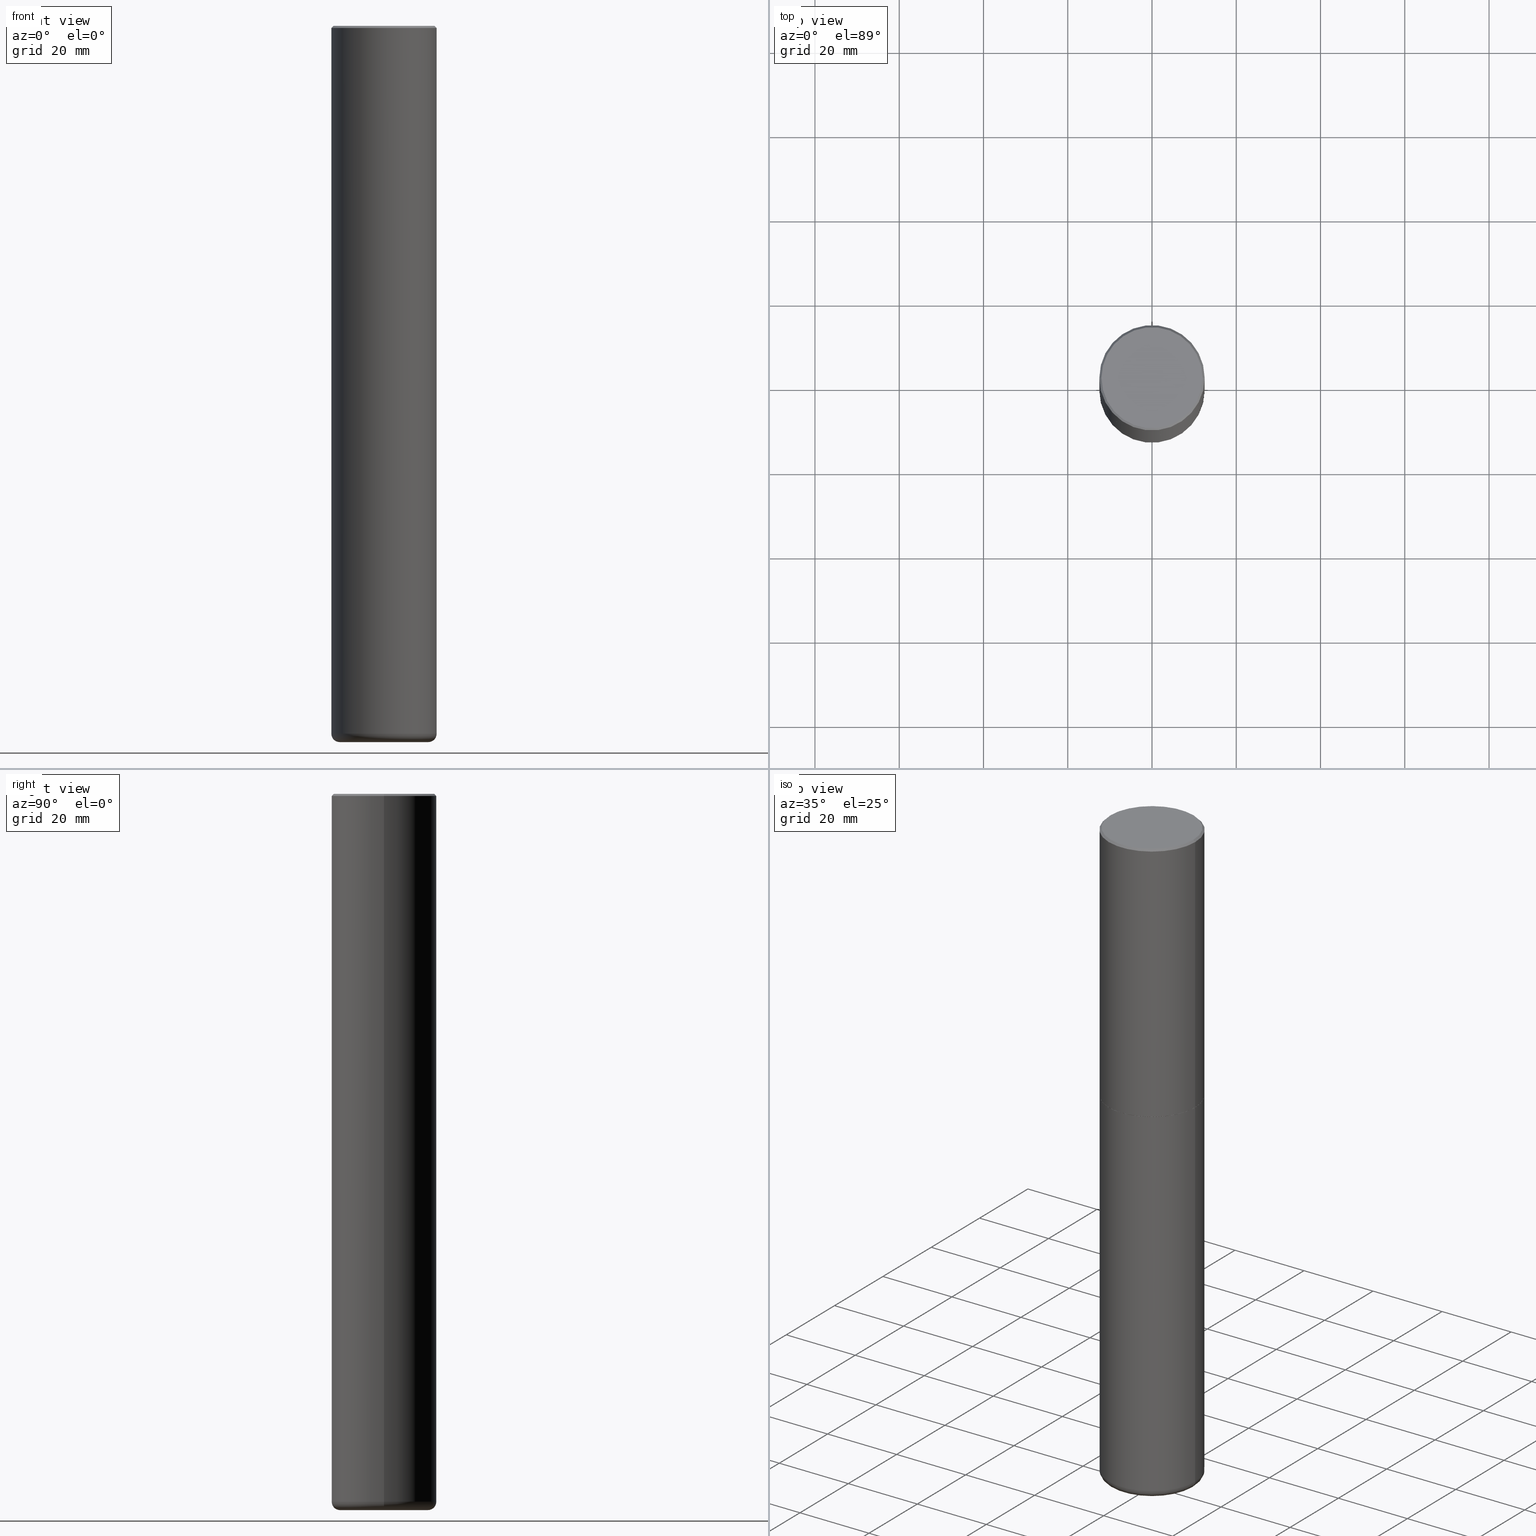
[diagram: canonical four-view strip — front | top / right | iso, engineering-drawing reading convention]
A machine part, canonical four-view strip (front | top / right | iso — engineering-drawing reading convention). The complete STEP part file that produces these views, byte-faithful:
ISO-10303-21;
HEADER;
FILE_DESCRIPTION (( 'STEP AP203' ),
    '1' );
FILE_NAME ('74905.STEP',
    '2024-05-02T19:29:17',
    ( '' ),
    ( '' ),
    'SwSTEP 2.0',
    'SolidWorks 2023',
    '' );
FILE_SCHEMA (( 'CONFIG_CONTROL_DESIGN' ));
ENDSEC;

DATA;
#1 = FACE_OUTER_BOUND ( 'NONE', #138, .T. ) ;
#2 = CARTESIAN_POINT ( 'NONE',  ( 6.739467482965618232E-29, -9.622173421717824390E-15, -2.755900000000000016 ) ) ;
#3 = VECTOR ( 'NONE', #306, 39.37007874015748143 ) ;
#4 = AXIS2_PLACEMENT_3D ( 'NONE', #328, #7, #132 ) ;
#5 = FACE_OUTER_BOUND ( 'NONE', #21, .T. ) ;
#6 =( LENGTH_UNIT ( ) NAMED_UNIT ( * ) SI_UNIT ( $, .METRE. ) );
#7 = DIRECTION ( 'NONE',  ( 7.105427357601001859E-15, 1.000000000000000000, -3.491481338843145583E-15 ) ) ;
#8 = EDGE_CURVE ( 'NONE', #121, #273, #321, .T. ) ;
#9 = AXIS2_PLACEMENT_3D ( 'NONE', #367, #116, #120 ) ;
#10 = PERSON_AND_ORGANIZATION_ROLE ( 'creator' ) ;
#11 = CIRCLE ( 'NONE', #172, 0.4921500000000000319 ) ;
#12 = CARTESIAN_POINT ( 'NONE',  ( 1.636727817291649742E-28, -2.336813545274328465E-14, -6.692899999999998961 ) ) ;
#13 = EDGE_LOOP ( 'NONE', ( #281, #129, #350, #92 ) ) ;
#14 = APPROVAL_DATE_TIME ( #207, #249 ) ;
#15 = DIRECTION ( 'NONE',  ( -6.982962677686266711E-15, -1.000000000000000000, 3.491481338843145583E-15 ) ) ;
#16 = ADVANCED_FACE ( 'NONE', ( #105 ), #227, .T. ) ;
#17 = PERSON_AND_ORGANIZATION ( #198, #418 ) ;
#18 = LINE ( 'NONE', #398, #100 ) ;
#19 = CARTESIAN_POINT ( 'NONE',  ( 0.4134499999999999287, -2.625524137183267217E-14, -6.692899999999998961 ) ) ;
#20 = AXIS2_PLACEMENT_3D ( 'NONE', #213, #309, #76 ) ;
#21 = EDGE_LOOP ( 'NONE', ( #123, #277, #270, #112 ) ) ;
#22 = DIRECTION ( 'NONE',  ( 1.000000000000000000, -6.982962677686265922E-15, 0.000000000000000000 ) ) ;
#23 = EDGE_LOOP ( 'NONE', ( #409, #407, #75, #113 ) ) ;
#24 = LINE ( 'NONE', #152, #102 ) ;
#25 = ORIENTED_EDGE ( 'NONE', *, *, #199, .T. ) ;
#26 = DIRECTION ( 'NONE',  ( 1.000000000000000000, -6.982962677686265922E-15, 4.876176775795935793E-29 ) ) ;
#27 = AXIS2_PLACEMENT_3D ( 'NONE', #294, #355, #323 ) ;
#28 = VERTEX_POINT ( 'NONE', #375 ) ;
#29 = EDGE_CURVE ( 'NONE', #78, #196, #93, .T. ) ;
#30 = CC_DESIGN_PERSON_AND_ORGANIZATION_ASSIGNMENT ( #305, #204, ( #181 ) ) ;
#31 = LOCAL_TIME ( 15, 29, 17.00000000000000000, #170 ) ;
#32 = DIRECTION ( 'NONE',  ( 2.445468806185136597E-29, -3.491481338843145583E-15, -1.000000000000000000 ) ) ;
#33 = CARTESIAN_POINT ( 'NONE',  ( 0.4921499999999999764, -3.436665081823295777E-15, 2.399810400207969603E-29 ) ) ;
#34 = FACE_OUTER_BOUND ( 'NONE', #23, .T. ) ;
#35 = EDGE_CURVE ( 'NONE', #153, #28, #278, .T. ) ;
#36 = DIMENSIONAL_EXPONENTS ( 1.000000000000000000, 0.000000000000000000, 0.000000000000000000, 0.000000000000000000, 0.000000000000000000, 0.000000000000000000, 0.000000000000000000 ) ;
#37 = VECTOR ( 'NONE', #162, 39.37007874015748143 ) ;
#38 = DIRECTION ( 'NONE',  ( -2.445468806185136597E-29, 3.491481338843145583E-15, 1.000000000000000000 ) ) ;
#39 = CC_DESIGN_SECURITY_CLASSIFICATION ( #224, ( #394 ) ) ;
#40 = CARTESIAN_POINT ( 'NONE',  ( 0.000000000000000000, 0.000000000000000000, 0.000000000000000000 ) ) ;
#41 = APPROVAL_STATUS ( 'not_yet_approved' ) ;
#42 = FACE_OUTER_BOUND ( 'NONE', #59, .T. ) ;
#43 = AXIS2_PLACEMENT_3D ( 'NONE', #12, #208, #53 ) ;
#44 = EDGE_LOOP ( 'NONE', ( #192, #399, #241, #206 ) ) ;
#45 = CIRCLE ( 'NONE', #4, 0.07869999999999977014 ) ;
#46 = CARTESIAN_POINT ( 'NONE',  ( -0.4911499999999999755, -6.132342775032092501E-15, -2.755900000000000016 ) ) ;
#47 =( NAMED_UNIT ( * ) SI_UNIT ( $, .STERADIAN. ) SOLID_ANGLE_UNIT ( ) );
#48 = CARTESIAN_POINT ( 'NONE',  ( -0.4921500000000003094, -1.347319709534586880E-15, -2.754900000000000126 ) ) ;
#49 = CALENDAR_DATE ( 2024, 2, 5 ) ;
#50 = CARTESIAN_POINT ( 'NONE',  ( 6.739467482965618232E-29, -9.622173421717824390E-15, -2.755900000000000016 ) ) ;
#51 = VERTEX_POINT ( 'NONE', #272 ) ;
#52 = DATE_TIME_ROLE ( 'creation_date' ) ;
#53 = DIRECTION ( 'NONE',  ( 1.000000000000000000, -6.982962677686271444E-15, 0.000000000000000000 ) ) ;
#54 = AXIS2_PLACEMENT_3D ( 'NONE', #365, #310, #303 ) ;
#55 = EDGE_CURVE ( 'NONE', #28, #153, #268, .T. ) ;
#56 = CARTESIAN_POINT ( 'NONE',  ( 6.739467482965618232E-29, -9.622173421717824390E-15, -2.755900000000000016 ) ) ;
#57 = EDGE_LOOP ( 'NONE', ( #25, #359, #311, #282 ) ) ;
#58 = PLANE ( 'NONE',  #197 ) ;
#59 = EDGE_LOOP ( 'NONE', ( #156, #95 ) ) ;
#60 = CARTESIAN_POINT ( 'NONE',  ( 0.4911499999999999755, -1.305185554086343257E-14, -2.755900000000000016 ) ) ;
#61 = EDGE_CURVE ( 'NONE', #248, #244, #66, .T. ) ;
#62 = VECTOR ( 'NONE', #150, 39.37007874015748143 ) ;
#63 = DIRECTION ( 'NONE',  ( 2.438088387897960049E-29, -3.491481338843145188E-15, -1.000000000000000000 ) ) ;
#64 = APPROVAL ( #260, 'UNSPECIFIED' ) ;
#65 = CARTESIAN_POINT ( 'NONE',  ( 6.739467482965618232E-29, -9.622173421717824390E-15, -2.755900000000000016 ) ) ;
#66 = CIRCLE ( 'NONE', #124, 0.4921500000000000319 ) ;
#67 = AXIS2_PLACEMENT_3D ( 'NONE', #169, #103, #229 ) ;
#68 = ADVANCED_FACE ( 'NONE', ( #42 ), #274, .T. ) ;
#69 = CARTESIAN_POINT ( 'NONE',  ( 0.4921500000000003094, -1.305534702220228032E-14, -2.754900000000000126 ) ) ;
#70 = CARTESIAN_POINT ( 'NONE',  ( 0.000000000000000000, 0.000000000000000000, 0.000000000000000000 ) ) ;
#71 = DIRECTION ( 'NONE',  ( -2.445468806185136597E-29, 3.491481338843145583E-15, 1.000000000000000000 ) ) ;
#72 = CC_DESIGN_DATE_AND_TIME_ASSIGNMENT ( #233, #52, ( #279 ) ) ;
#73 = FACE_OUTER_BOUND ( 'NONE', #13, .T. ) ;
#74 = LOCAL_TIME ( 15, 29, 17.00000000000000000, #405 ) ;
#75 = ORIENTED_EDGE ( 'NONE', *, *, #313, .T. ) ;
#76 = DIRECTION ( 'NONE',  ( 1.000000000000000000, 0.000000000000000000, 0.000000000000000000 ) ) ;
#77 = DIRECTION ( 'NONE',  ( 1.000000000000000000, -6.982962677686265922E-15, 0.000000000000000000 ) ) ;
#78 = VERTEX_POINT ( 'NONE', #372 ) ;
#79 = DATE_TIME_ROLE ( 'classification_date' ) ;
#80 = FACE_OUTER_BOUND ( 'NONE', #381, .T. ) ;
#81 = PERSON_AND_ORGANIZATION ( #198, #418 ) ;
#82 = CONICAL_SURFACE ( 'NONE', #67, 0.4921500000000000319, 0.7853981633974452814 ) ;
#83 = EDGE_CURVE ( 'NONE', #301, #246, #154, .T. ) ;
#84 = DIRECTION ( 'NONE',  ( -2.445468806185136597E-29, 3.491481338843145583E-15, 1.000000000000000000 ) ) ;
#85 =( CONVERSION_BASED_UNIT ( 'INCH', #290 ) LENGTH_UNIT ( ) NAMED_UNIT ( #36 ) );
#86 = CARTESIAN_POINT ( 'NONE',  ( 4.890937612370299433E-31, -6.982962677686328587E-17, -0.02000000000000010797 ) ) ;
#87 = EDGE_LOOP ( 'NONE', ( #416, #297, #315, #284 ) ) ;
#88 = PERSON_AND_ORGANIZATION ( #198, #418 ) ;
#89 = PLANE ( 'NONE',  #285 ) ;
#90 = ADVANCED_FACE ( 'NONE', ( #396 ), #265, .T. ) ;
#91 = CC_DESIGN_PERSON_AND_ORGANIZATION_ASSIGNMENT ( #239, #215, ( #394 ) ) ;
#92 = ORIENTED_EDGE ( 'NONE', *, *, #61, .F. ) ;
#93 = CIRCLE ( 'NONE', #43, 0.4134499999999999287 ) ;
#94 = EDGE_CURVE ( 'NONE', #153, #244, #114, .T. ) ;
#95 = ORIENTED_EDGE ( 'NONE', *, *, #29, .F. ) ;
#96 = ORIENTED_EDGE ( 'NONE', *, *, #235, .T. ) ;
#97 = EDGE_CURVE ( 'NONE', #376, #244, #243, .T. ) ;
#98 = DIRECTION ( 'NONE',  ( 1.000000000000000000, -6.982962677686265922E-15, 0.000000000000000000 ) ) ;
#99 = ORIENTED_EDGE ( 'NONE', *, *, #373, .F. ) ;
#100 = VECTOR ( 'NONE', #122, 39.37007874015748143 ) ;
#101 = VECTOR ( 'NONE', #408, 39.37007874015748143 ) ;
#102 = VECTOR ( 'NONE', #158, 39.37007874015748143 ) ;
#103 = DIRECTION ( 'NONE',  ( 2.445468806185136597E-29, -3.491481338843145583E-15, -1.000000000000000000 ) ) ;
#104 = FACE_OUTER_BOUND ( 'NONE', #57, .T. ) ;
#105 = FACE_OUTER_BOUND ( 'NONE', #87, .T. ) ;
#106 = CONICAL_SURFACE ( 'NONE', #318, 0.4911499999999999755, 0.7853981633977213939 ) ;
#107 = DIRECTION ( 'NONE',  ( -2.445468806185136597E-29, 3.491481338843145583E-15, 1.000000000000000000 ) ) ;
#108 = CARTESIAN_POINT ( 'NONE',  ( -0.4921500000000001984, 3.496936074043334475E-15, -2.420853904668952630E-29 ) ) ;
#109 = EDGE_CURVE ( 'NONE', #246, #376, #18, .T. ) ;
#110 = DIRECTION ( 'NONE',  ( 1.000000000000000000, -6.982962677686265922E-15, 4.876176775795935793E-29 ) ) ;
#111 = TOROIDAL_SURFACE ( 'NONE', #27, 0.4134499999999999287, 0.07869999999999972851 ) ;
#112 = ORIENTED_EDGE ( 'NONE', *, *, #194, .F. ) ;
#113 = ORIENTED_EDGE ( 'NONE', *, *, #235, .F. ) ;
#114 = LINE ( 'NONE', #146, #3 ) ;
#115 = SHAPE_DEFINITION_REPRESENTATION ( #366, #324 ) ;
#116 = DIRECTION ( 'NONE',  ( -2.445468806185136597E-29, 3.491481338843145583E-15, 1.000000000000000000 ) ) ;
#117 = COORDINATED_UNIVERSAL_TIME_OFFSET ( 5, 0, .BEHIND. ) ;
#118 = DIRECTION ( 'NONE',  ( 2.438088387897960049E-29, -3.491481338843145188E-15, -1.000000000000000000 ) ) ;
#119 = PERSON_AND_ORGANIZATION_ROLE ( 'creator' ) ;
#120 = DIRECTION ( 'NONE',  ( 1.000000000000000000, -6.982962677686265922E-15, 4.882029041999364017E-29 ) ) ;
#121 = VERTEX_POINT ( 'NONE', #234 ) ;
#122 = DIRECTION ( 'NONE',  ( 0.7071067811867406405, -2.468850131084279700E-15, 0.7071067811863543939 ) ) ;
#123 = ORIENTED_EDGE ( 'NONE', *, *, #286, .F. ) ;
#124 = AXIS2_PLACEMENT_3D ( 'NONE', #86, #236, #22 ) ;
#125 = AXIS2_PLACEMENT_3D ( 'NONE', #214, #15, #177 ) ;
#126 = EDGE_CURVE ( 'NONE', #121, #51, #369, .T. ) ;
#127 = ORIENTED_EDGE ( 'NONE', *, *, #8, .F. ) ;
#128 = CARTESIAN_POINT ( 'NONE',  ( -0.4921500000000000319, 3.366835455046432873E-15, -0.02000000000000010797 ) ) ;
#129 = ORIENTED_EDGE ( 'NONE', *, *, #383, .T. ) ;
#130 = DIRECTION ( 'NONE',  ( -2.445468806185136597E-29, 3.491481338843145583E-15, 1.000000000000000000 ) ) ;
#131 = AXIS2_PLACEMENT_3D ( 'NONE', #2, #38, #201 ) ;
#132 = DIRECTION ( 'NONE',  ( -1.000000000000000000, 7.105427357601012903E-15, 0.000000000000000000 ) ) ;
#133 = DIRECTION ( 'NONE',  ( -1.000000000000000000, 6.982962677686265922E-15, 0.000000000000000000 ) ) ;
#134 = AXIS2_PLACEMENT_3D ( 'NONE', #165, #107, #110 ) ;
#135 = CARTESIAN_POINT ( 'NONE',  ( -0.4911499999999999755, -6.127044320683869310E-15, -2.755900000000000016 ) ) ;
#136 = MANIFOLD_SOLID_BREP ( 'Body-Move/Copy2[2]', #402 ) ;
#137 = LINE ( 'NONE', #108, #291 ) ;
#138 = EDGE_LOOP ( 'NONE', ( #220, #185, #96, #157 ) ) ;
#139 = DATE_AND_TIME ( #49, #370 ) ;
#140 = AXIS2_PLACEMENT_3D ( 'NONE', #334, #145, #148 ) ;
#141 = CIRCLE ( 'NONE', #191, 0.4921500000000003094 ) ;
#142 = COORDINATED_UNIVERSAL_TIME_OFFSET ( 5, 0, .BEHIND. ) ;
#143 = CARTESIAN_POINT ( 'NONE',  ( 6.739467482965618232E-29, -9.622173421717824390E-15, -2.755900000000000016 ) ) ;
#144 = DATE_AND_TIME ( #332, #354 ) ;
#145 = DIRECTION ( 'NONE',  ( -2.445468806185136597E-29, 3.491481338843145583E-15, 1.000000000000000000 ) ) ;
#146 = CARTESIAN_POINT ( 'NONE',  ( 0.4921500000000000319, -3.446223716380123138E-15, -0.02000000000000010797 ) ) ;
#147 = AXIS2_PLACEMENT_3D ( 'NONE', #254, #32, #133 ) ;
#148 = DIRECTION ( 'NONE',  ( 1.000000000000000000, -6.982962677686265922E-15, 4.882029041999364017E-29 ) ) ;
#149 = EDGE_LOOP ( 'NONE', ( #218, #316 ) ) ;
#150 = DIRECTION ( 'NONE',  ( -0.7071067811867406405, 7.493145998871051513E-15, 0.7071067811863543939 ) ) ;
#151 = ORIENTED_EDGE ( 'NONE', *, *, #163, .T. ) ;
#152 = CARTESIAN_POINT ( 'NONE',  ( -0.4921500000000000319, 3.366835455046432873E-15, -0.02000000000000010797 ) ) ;
#153 = VERTEX_POINT ( 'NONE', #267 ) ;
#154 = CIRCLE ( 'NONE', #386, 0.4911499999999999755 ) ;
#155 = CARTESIAN_POINT ( 'NONE',  ( 0.4921499999999999764, -1.305883850354112017E-14, -2.755900000000000016 ) ) ;
#156 = ORIENTED_EDGE ( 'NONE', *, *, #199, .F. ) ;
#157 = ORIENTED_EDGE ( 'NONE', *, *, #61, .T. ) ;
#158 = DIRECTION ( 'NONE',  ( -0.7071067811865453523, 2.468850131082234184E-15, -0.7071067811865496822 ) ) ;
#159 = ADVANCED_FACE ( 'NONE', ( #80 ), #89, .F. ) ;
#160 = LOCAL_TIME ( 15, 29, 17.00000000000000000, #117 ) ;
#161 = DIRECTION ( 'NONE',  ( 1.000000000000000000, -6.982962677686265922E-15, 0.000000000000000000 ) ) ;
#162 = DIRECTION ( 'NONE',  ( -2.445468806185136877E-29, 3.491481338843145188E-15, 1.000000000000000000 ) ) ;
#163 = EDGE_CURVE ( 'NONE', #301, #173, #401, .T. ) ;
#164 = DIRECTION ( 'NONE',  ( -2.445468806185136877E-29, 3.491481338843145188E-15, 1.000000000000000000 ) ) ;
#165 = CARTESIAN_POINT ( 'NONE',  ( 0.000000000000000000, 0.000000000000000000, 0.000000000000000000 ) ) ;
#166 = CIRCLE ( 'NONE', #125, 0.07869999999999977014 ) ;
#167 = DIRECTION ( 'NONE',  ( 1.000000000000000000, -6.982962677686265922E-15, 0.000000000000000000 ) ) ;
#168 = EDGE_LOOP ( 'NONE', ( #250, #412 ) ) ;
#169 = CARTESIAN_POINT ( 'NONE',  ( 4.890937612370299433E-31, -6.982962677686328587E-17, -0.02000000000000010797 ) ) ;
#170 = COORDINATED_UNIVERSAL_TIME_OFFSET ( 5, 0, .BEHIND. ) ;
#171 = CARTESIAN_POINT ( 'NONE',  ( 2.871957111324810676E-28, -5.678948913335325119E-15, -6.692899999999999849 ) ) ;
#172 = AXIS2_PLACEMENT_3D ( 'NONE', #385, #258, #161 ) ;
#173 = VERTEX_POINT ( 'NONE', #48 ) ;
#174 = DIRECTION ( 'NONE',  ( -1.000000000000000000, 6.982962677686265922E-15, -4.876176775795935793E-29 ) ) ;
#175 = CC_DESIGN_PERSON_AND_ORGANIZATION_ASSIGNMENT ( #88, #10, ( #394 ) ) ;
#176 = MECHANICAL_CONTEXT ( 'NONE', #411, 'mechanical' ) ;
#177 = DIRECTION ( 'NONE',  ( 1.000000000000000000, -6.982962677686265133E-15, 0.000000000000000000 ) ) ;
#178 = EDGE_CURVE ( 'NONE', #196, #121, #166, .T. ) ;
#179 = APPROVAL_ROLE ( '' ) ;
#180 = DIRECTION ( 'NONE',  ( -2.445468806185136597E-29, 3.491481338843145583E-15, 1.000000000000000000 ) ) ;
#181 = PRODUCT ( '74905', '74905', '', ( #176 ) ) ;
#182 = ORIENTED_EDGE ( 'NONE', *, *, #126, .T. ) ;
#183 = DIRECTION ( 'NONE',  ( 1.000000000000000000, -6.982962677686265922E-15, 4.876176775795935793E-29 ) ) ;
#184 = DIRECTION ( 'NONE',  ( 1.000000000000000000, -6.982962677686264344E-15, 0.000000000000000000 ) ) ;
#185 = ORIENTED_EDGE ( 'NONE', *, *, #55, .F. ) ;
#186 = CARTESIAN_POINT ( 'NONE',  ( 6.739467482965618232E-29, -9.622173421717824390E-15, -2.755900000000000016 ) ) ;
#187 = ADVANCED_FACE ( 'NONE', ( #304 ), #106, .T. ) ;
#188 = CC_DESIGN_PERSON_AND_ORGANIZATION_ASSIGNMENT ( #81, #339, ( #224 ) ) ;
#189 = ORIENTED_EDGE ( 'NONE', *, *, #55, .T. ) ;
#190 = PLANE ( 'NONE',  #261 ) ;
#191 = AXIS2_PLACEMENT_3D ( 'NONE', #346, #415, #98 ) ;
#192 = ORIENTED_EDGE ( 'NONE', *, *, #163, .F. ) ;
#193 = DIRECTION ( 'NONE',  ( -2.445468806185136597E-29, 3.491481338843145583E-15, 1.000000000000000000 ) ) ;
#194 = EDGE_CURVE ( 'NONE', #308, #273, #300, .T. ) ;
#195 = DIRECTION ( 'NONE',  ( -2.445468806185136597E-29, 3.491481338843145583E-15, 1.000000000000000000 ) ) ;
#196 = VERTEX_POINT ( 'NONE', #19 ) ;
#197 = AXIS2_PLACEMENT_3D ( 'NONE', #186, #312, #26 ) ;
#198 = PERSON ( 'UNSPECIFIED', 'UNSPECIFIED', 'UNSPECIFIED', ('UNSPECIFIED'), ('UNSPECIFIED'), ('UNSPECIFIED') ) ;
#199 = EDGE_CURVE ( 'NONE', #196, #78, #202, .T. ) ;
#200 = LINE ( 'NONE', #356, #410 ) ;
#201 = DIRECTION ( 'NONE',  ( 1.000000000000000000, -6.982962677686264344E-15, 0.000000000000000000 ) ) ;
#202 = CIRCLE ( 'NONE', #353, 0.4134499999999999287 ) ;
#203 = DIRECTION ( 'NONE',  ( -2.445468806185136597E-29, 3.491481338843145583E-15, 1.000000000000000000 ) ) ;
#204 = PERSON_AND_ORGANIZATION_ROLE ( 'design_owner' ) ;
#205 = CARTESIAN_POINT ( 'NONE',  ( 1.636727817291649742E-28, -2.336813545274328465E-14, -6.692899999999998961 ) ) ;
#206 = ORIENTED_EDGE ( 'NONE', *, *, #383, .F. ) ;
#207 = DATE_AND_TIME ( #298, #31 ) ;
#208 = DIRECTION ( 'NONE',  ( -2.445468806185136597E-29, 3.491481338843145583E-15, 1.000000000000000000 ) ) ;
#209 = APPROVAL ( #271, 'UNSPECIFIED' ) ;
#210 = CONICAL_SURFACE ( 'NONE', #147, 0.4921500000000000319, 0.7853981633974452814 ) ;
#211 = APPLICATION_PROTOCOL_DEFINITION ( 'international standard', 'config_control_design', 1994, #411 ) ;
#212 = DIRECTION ( 'NONE',  ( -2.445468806185136597E-29, 3.491481338843145583E-15, 1.000000000000000000 ) ) ;
#213 = CARTESIAN_POINT ( 'NONE',  ( 0.000000000000000000, 0.000000000000000000, 0.000000000000000000 ) ) ;
#214 = CARTESIAN_POINT ( 'NONE',  ( 0.4134499999999999287, -2.598046179046571568E-14, -6.614199999999999413 ) ) ;
#215 = PERSON_AND_ORGANIZATION_ROLE ( 'design_supplier' ) ;
#216 = CARTESIAN_POINT ( 'NONE',  ( 3.297005828269569180E-15, 0.4721499999999997921, -1.507642001961476820E-15 ) ) ;
#217 = APPROVAL_PERSON_ORGANIZATION ( #17, #249, #302 ) ;
#218 = ORIENTED_EDGE ( 'NONE', *, *, #232, .F. ) ;
#219 = EDGE_CURVE ( 'NONE', #376, #173, #141, .T. ) ;
#220 = ORIENTED_EDGE ( 'NONE', *, *, #94, .F. ) ;
#221 = EDGE_LOOP ( 'NONE', ( #182, #342, #266, #127 ) ) ;
#222 = CARTESIAN_POINT ( 'NONE',  ( 6.739467482965618232E-29, -9.622173421717824390E-15, -2.755900000000000016 ) ) ;
#223 = CIRCLE ( 'NONE', #388, 0.4921500000000003094 ) ;
#224 = SECURITY_CLASSIFICATION ( '', '', #371 ) ;
#225 = DIRECTION ( 'NONE',  ( 1.000000000000000000, -6.982962677686261977E-15, 4.883557194083111780E-29 ) ) ;
#226 = DIRECTION ( 'NONE',  ( -2.445468806185136877E-29, 3.491481338843145188E-15, 1.000000000000000000 ) ) ;
#227 = CYLINDRICAL_SURFACE ( 'NONE', #325, 0.4921500000000001984 ) ;
#228 = AXIS2_PLACEMENT_3D ( 'NONE', #287, #203, #225 ) ;
#229 = DIRECTION ( 'NONE',  ( -1.000000000000000000, 6.982962677686265922E-15, 0.000000000000000000 ) ) ;
#230 =( GEOMETRIC_REPRESENTATION_CONTEXT ( 3 ) GLOBAL_UNCERTAINTY_ASSIGNED_CONTEXT ( ( #247 ) ) GLOBAL_UNIT_ASSIGNED_CONTEXT ( ( #85, #395, #47 ) ) REPRESENTATION_CONTEXT ( 'NONE', 'WORKASPACE' ) );
#231 = ORIENTED_EDGE ( 'NONE', *, *, #219, .F. ) ;
#232 = EDGE_CURVE ( 'NONE', #246, #301, #269, .T. ) ;
#233 = DATE_AND_TIME ( #374, #160 ) ;
#234 = CARTESIAN_POINT ( 'NONE',  ( 0.4921499999999998098, -2.653002095319962235E-14, -6.614199999999999413 ) ) ;
#235 = EDGE_CURVE ( 'NONE', #28, #248, #24, .T. ) ;
#236 = DIRECTION ( 'NONE',  ( -2.445468806185136597E-29, 3.491481338843145583E-15, 1.000000000000000000 ) ) ;
#237 = AXIS2_PLACEMENT_3D ( 'NONE', #263, #212, #183 ) ;
#238 = CONICAL_SURFACE ( 'NONE', #131, 0.4911499999999999755, 0.7853981633977213939 ) ;
#239 = PERSON_AND_ORGANIZATION ( #198, #418 ) ;
#240 = CARTESIAN_POINT ( 'NONE',  ( 6.739467482965618232E-29, -9.622173421717824390E-15, -2.755900000000000016 ) ) ;
#241 = ORIENTED_EDGE ( 'NONE', *, *, #109, .T. ) ;
#242 = APPROVAL_DATE_TIME ( #400, #209 ) ;
#243 = LINE ( 'NONE', #338, #101 ) ;
#244 = VERTEX_POINT ( 'NONE', #283 ) ;
#245 = DIRECTION ( 'NONE',  ( 1.000000000000000000, -6.982962677686264344E-15, 0.000000000000000000 ) ) ;
#246 = VERTEX_POINT ( 'NONE', #60 ) ;
#247 = UNCERTAINTY_MEASURE_WITH_UNIT (LENGTH_MEASURE( 1.000000000000000082E-05 ), #85, 'distance_accuracy_value', 'NONE');
#248 = VERTEX_POINT ( 'NONE', #128 ) ;
#249 = APPROVAL ( #41, 'UNSPECIFIED' ) ;
#250 = ORIENTED_EDGE ( 'NONE', *, *, #382, .T. ) ;
#251 = FACE_OUTER_BOUND ( 'NONE', #168, .T. ) ;
#252 = APPROVAL_PERSON_ORGANIZATION ( #262, #209, #329 ) ;
#253 = CYLINDRICAL_SURFACE ( 'NONE', #280, 0.4921500000000001984 ) ;
#254 = CARTESIAN_POINT ( 'NONE',  ( 4.890937612370299433E-31, -6.982962677686328587E-17, -0.02000000000000010797 ) ) ;
#255 = CARTESIAN_POINT ( 'NONE',  ( -0.4921499999999999764, -1.286082857250374574E-14, -2.755900000000000016 ) ) ;
#256 = DIRECTION ( 'NONE',  ( -2.445468806185136597E-29, 3.491481338843145583E-15, 1.000000000000000000 ) ) ;
#257 = DIRECTION ( 'NONE',  ( -2.445468806185136597E-29, 3.491481338843145583E-15, 1.000000000000000000 ) ) ;
#258 = DIRECTION ( 'NONE',  ( -2.445468806185136597E-29, 3.491481338843145583E-15, 1.000000000000000000 ) ) ;
#259 = ADVANCED_FACE ( 'NONE', ( #348 ), #58, .F. ) ;
#260 = APPROVAL_STATUS ( 'not_yet_approved' ) ;
#261 = AXIS2_PLACEMENT_3D ( 'NONE', #222, #63, #317 ) ;
#262 = PERSON_AND_ORGANIZATION ( #198, #418 ) ;
#263 = CARTESIAN_POINT ( 'NONE',  ( 0.000000000000000000, 0.000000000000000000, 0.000000000000000000 ) ) ;
#264 = COORDINATED_UNIVERSAL_TIME_OFFSET ( 5, 0, .BEHIND. ) ;
#265 = CYLINDRICAL_SURFACE ( 'NONE', #237, 0.4921499999999999764 ) ;
#266 = ORIENTED_EDGE ( 'NONE', *, *, #382, .F. ) ;
#267 = CARTESIAN_POINT ( 'NONE',  ( 0.4721499999999997921, -3.342703923013974974E-15, 2.817218243466503973E-16 ) ) ;
#268 = CIRCLE ( 'NONE', #9, 0.4721499999999997921 ) ;
#269 = CIRCLE ( 'NONE', #360, 0.4911499999999999755 ) ;
#270 = ORIENTED_EDGE ( 'NONE', *, *, #8, .T. ) ;
#271 = APPROVAL_STATUS ( 'not_yet_approved' ) ;
#272 = CARTESIAN_POINT ( 'NONE',  ( -0.4921499999999998098, -1.959641979733300078E-14, -6.614199999999999413 ) ) ;
#273 = VERTEX_POINT ( 'NONE', #155 ) ;
#274 = PLANE ( 'NONE',  #335 ) ;
#275 = ADVANCED_FACE ( 'NONE', ( #251 ), #190, .F. ) ;
#276 = CC_DESIGN_DATE_AND_TIME_ASSIGNMENT ( #139, #79, ( #224 ) ) ;
#277 = ORIENTED_EDGE ( 'NONE', *, *, #288, .T. ) ;
#278 = CIRCLE ( 'NONE', #140, 0.4721499999999997921 ) ;
#279 = PRODUCT_DEFINITION ( 'UNKNOWN', '', #394, #349 ) ;
#280 = AXIS2_PLACEMENT_3D ( 'NONE', #40, #326, #352 ) ;
#281 = ORIENTED_EDGE ( 'NONE', *, *, #333, .F. ) ;
#282 = ORIENTED_EDGE ( 'NONE', *, *, #178, .F. ) ;
#283 = CARTESIAN_POINT ( 'NONE',  ( 0.4921500000000000319, -3.446223716380123138E-15, -0.02000000000000010797 ) ) ;
#284 = ORIENTED_EDGE ( 'NONE', *, *, #97, .F. ) ;
#285 = AXIS2_PLACEMENT_3D ( 'NONE', #216, #344, #174 ) ;
#286 = EDGE_CURVE ( 'NONE', #51, #308, #200, .T. ) ;
#287 = CARTESIAN_POINT ( 'NONE',  ( 1.617481977786973037E-28, -2.309335587137633131E-14, -6.614199999999999413 ) ) ;
#288 = EDGE_CURVE ( 'NONE', #51, #121, #336, .T. ) ;
#289 = DIRECTION ( 'NONE',  ( 1.000000000000000000, -6.982962677686265133E-15, 0.000000000000000000 ) ) ;
#290 = LENGTH_MEASURE_WITH_UNIT ( LENGTH_MEASURE( 0.02539999999999999897 ), #6 );
#291 = VECTOR ( 'NONE', #226, 39.37007874015748143 ) ;
#292 = APPLICATION_CONTEXT ( 'configuration controlled 3d designs of mechanical parts and assemblies' ) ;
#293 = ADVANCED_FACE ( 'NONE', ( #5 ), #296, .T. ) ;
#294 = CARTESIAN_POINT ( 'NONE',  ( 1.617481977786973037E-28, -2.309335587137633131E-14, -6.614199999999999413 ) ) ;
#295 = ORIENTED_EDGE ( 'NONE', *, *, #232, .T. ) ;
#296 = CYLINDRICAL_SURFACE ( 'NONE', #134, 0.4921499999999999764 ) ;
#297 = ORIENTED_EDGE ( 'NONE', *, *, #333, .T. ) ;
#298 = CALENDAR_DATE ( 2024, 2, 5 ) ;
#299 = DIRECTION ( 'NONE',  ( -1.000000000000000000, 6.982962677686265922E-15, -4.876176775795935793E-29 ) ) ;
#300 = CIRCLE ( 'NONE', #351, 0.4921499999999999764 ) ;
#301 = VERTEX_POINT ( 'NONE', #135 ) ;
#302 = APPROVAL_ROLE ( '' ) ;
#303 = DIRECTION ( 'NONE',  ( 1.000000000000000000, -6.982962677686265133E-15, 0.000000000000000000 ) ) ;
#304 = FACE_OUTER_BOUND ( 'NONE', #378, .T. ) ;
#305 = PERSON_AND_ORGANIZATION ( #198, #418 ) ;
#306 = DIRECTION ( 'NONE',  ( 0.7071067811865453523, -7.319954787623248157E-15, -0.7071067811865496822 ) ) ;
#307 = AXIS2_PLACEMENT_3D ( 'NONE', #65, #257, #389 ) ;
#308 = VERTEX_POINT ( 'NONE', #255 ) ;
#309 = DIRECTION ( 'NONE',  ( 0.000000000000000000, 0.000000000000000000, 1.000000000000000000 ) ) ;
#310 = DIRECTION ( 'NONE',  ( -2.445468806185136597E-29, 3.491481338843145583E-15, 1.000000000000000000 ) ) ;
#311 = ORIENTED_EDGE ( 'NONE', *, *, #126, .F. ) ;
#312 = DIRECTION ( 'NONE',  ( -2.438088387897960049E-29, 3.491481338843145188E-15, 1.000000000000000000 ) ) ;
#313 = EDGE_CURVE ( 'NONE', #244, #248, #11, .T. ) ;
#314 = TOROIDAL_SURFACE ( 'NONE', #228, 0.4134499999999999287, 0.07869999999999972851 ) ;
#315 = ORIENTED_EDGE ( 'NONE', *, *, #313, .F. ) ;
#316 = ORIENTED_EDGE ( 'NONE', *, *, #83, .F. ) ;
#317 = DIRECTION ( 'NONE',  ( -1.000000000000000000, 6.982962677686265922E-15, -4.876176775795935793E-29 ) ) ;
#318 = AXIS2_PLACEMENT_3D ( 'NONE', #240, #340, #245 ) ;
#319 = ADVANCED_FACE ( 'NONE', ( #34 ), #82, .T. ) ;
#320 = FACE_OUTER_BOUND ( 'NONE', #404, .T. ) ;
#321 = LINE ( 'NONE', #33, #37 ) ;
#322 = CC_DESIGN_PERSON_AND_ORGANIZATION_ASSIGNMENT ( #337, #119, ( #279 ) ) ;
#323 = DIRECTION ( 'NONE',  ( 1.000000000000000000, -6.982962677686261977E-15, 4.883557194083111780E-29 ) ) ;
#324 = ADVANCED_BREP_SHAPE_REPRESENTATION ( '74905', ( #413, #136, #20 ), #230 ) ;
#325 = AXIS2_PLACEMENT_3D ( 'NONE', #70, #256, #406 ) ;
#326 = DIRECTION ( 'NONE',  ( -2.445468806185136597E-29, 3.491481338843145583E-15, 1.000000000000000000 ) ) ;
#327 = AXIS2_PLACEMENT_3D ( 'NONE', #384, #71, #289 ) ;
#328 = CARTESIAN_POINT ( 'NONE',  ( -0.4134499999999999287, -2.015561693037619641E-14, -6.614199999999999413 ) ) ;
#329 = APPROVAL_ROLE ( '' ) ;
#330 = DIRECTION ( 'NONE',  ( 1.000000000000000000, -6.982962677686264344E-15, 0.000000000000000000 ) ) ;
#331 = ORIENTED_EDGE ( 'NONE', *, *, #35, .T. ) ;
#332 = CALENDAR_DATE ( 2024, 2, 5 ) ;
#333 = EDGE_CURVE ( 'NONE', #173, #248, #137, .T. ) ;
#334 = CARTESIAN_POINT ( 'NONE',  ( -6.889419334612450925E-45, 9.836264924510951028E-31, 2.817218243466271259E-16 ) ) ;
#335 = AXIS2_PLACEMENT_3D ( 'NONE', #171, #118, #299 ) ;
#336 = CIRCLE ( 'NONE', #327, 0.4921500000000000319 ) ;
#337 = PERSON_AND_ORGANIZATION ( #198, #418 ) ;
#338 = CARTESIAN_POINT ( 'NONE',  ( 0.4921500000000001984, -3.436665081823297354E-15, 2.399810400207970443E-29 ) ) ;
#339 = PERSON_AND_ORGANIZATION_ROLE ( 'classification_officer' ) ;
#340 = DIRECTION ( 'NONE',  ( -2.445468806185136597E-29, 3.491481338843145583E-15, 1.000000000000000000 ) ) ;
#341 = ADVANCED_FACE ( 'NONE', ( #392 ), #238, .T. ) ;
#342 = ORIENTED_EDGE ( 'NONE', *, *, #286, .T. ) ;
#343 = PERSON_AND_ORGANIZATION ( #198, #418 ) ;
#344 = DIRECTION ( 'NONE',  ( 2.438088387897960049E-29, -3.491481338843145188E-15, -1.000000000000000000 ) ) ;
#345 = CC_DESIGN_APPROVAL ( #209, ( #279 ) ) ;
#346 = CARTESIAN_POINT ( 'NONE',  ( 6.737022014159432629E-29, -9.618681940378981383E-15, -2.754900000000000126 ) ) ;
#347 = ORIENTED_EDGE ( 'NONE', *, *, #109, .F. ) ;
#348 = FACE_OUTER_BOUND ( 'NONE', #149, .T. ) ;
#349 = DESIGN_CONTEXT ( 'detailed design', #292, 'design' ) ;
#350 = ORIENTED_EDGE ( 'NONE', *, *, #97, .T. ) ;
#351 = AXIS2_PLACEMENT_3D ( 'NONE', #50, #180, #77 ) ;
#352 = DIRECTION ( 'NONE',  ( 1.000000000000000000, -6.982962677686266711E-15, 4.876176775795935232E-29 ) ) ;
#353 = AXIS2_PLACEMENT_3D ( 'NONE', #205, #193, #417 ) ;
#354 = LOCAL_TIME ( 15, 29, 17.00000000000000000, #142 ) ;
#355 = DIRECTION ( 'NONE',  ( -2.445468806185136597E-29, 3.491481338843145583E-15, 1.000000000000000000 ) ) ;
#356 = CARTESIAN_POINT ( 'NONE',  ( -0.4921499999999999764, 3.496936074043332897E-15, -2.420853904668951509E-29 ) ) ;
#357 = PRODUCT_RELATED_PRODUCT_CATEGORY ( 'detail', '', ( #181 ) ) ;
#358 = ADVANCED_FACE ( 'NONE', ( #1 ), #210, .T. ) ;
#359 = ORIENTED_EDGE ( 'NONE', *, *, #373, .T. ) ;
#360 = AXIS2_PLACEMENT_3D ( 'NONE', #56, #130, #184 ) ;
#361 = CC_DESIGN_APPROVAL ( #249, ( #394 ) ) ;
#362 = ORIENTED_EDGE ( 'NONE', *, *, #29, .T. ) ;
#363 = CALENDAR_DATE ( 2024, 2, 5 ) ;
#364 = ADVANCED_FACE ( 'NONE', ( #104 ), #314, .T. ) ;
#365 = CARTESIAN_POINT ( 'NONE',  ( 1.617481977786973037E-28, -2.309335587137633131E-14, -6.614199999999999413 ) ) ;
#366 = PRODUCT_DEFINITION_SHAPE ( 'NONE', 'NONE',  #279 ) ;
#367 = CARTESIAN_POINT ( 'NONE',  ( -6.889419334612450925E-45, 9.836264924510951028E-31, 2.817218243466271259E-16 ) ) ;
#368 = CLOSED_SHELL ( 'NONE', ( #90, #364, #275, #293, #387, #68 ) ) ;
#369 = CIRCLE ( 'NONE', #54, 0.4921500000000000319 ) ;
#370 = LOCAL_TIME ( 15, 29, 17.00000000000000000, #264 ) ;
#371 = SECURITY_CLASSIFICATION_LEVEL ( 'unclassified' ) ;
#372 = CARTESIAN_POINT ( 'NONE',  ( -0.4134499999999999287, -2.001340815453807527E-14, -6.692899999999998961 ) ) ;
#373 = EDGE_CURVE ( 'NONE', #78, #51, #45, .T. ) ;
#374 = CALENDAR_DATE ( 2024, 2, 5 ) ;
#375 = CARTESIAN_POINT ( 'NONE',  ( -0.4721499999999997921, 3.331920641658001618E-15, 2.817218243466039531E-16 ) ) ;
#376 = VERTEX_POINT ( 'NONE', #69 ) ;
#377 = CC_DESIGN_APPROVAL ( #64, ( #224 ) ) ;
#378 = EDGE_LOOP ( 'NONE', ( #295, #151, #231, #347 ) ) ;
#379 = ORIENTED_EDGE ( 'NONE', *, *, #288, .F. ) ;
#380 = ADVANCED_FACE ( 'NONE', ( #73 ), #253, .T. ) ;
#381 = EDGE_LOOP ( 'NONE', ( #189, #331 ) ) ;
#382 = EDGE_CURVE ( 'NONE', #273, #308, #403, .T. ) ;
#383 = EDGE_CURVE ( 'NONE', #173, #376, #223, .T. ) ;
#384 = CARTESIAN_POINT ( 'NONE',  ( 1.617481977786973037E-28, -2.309335587137633131E-14, -6.614199999999999413 ) ) ;
#385 = CARTESIAN_POINT ( 'NONE',  ( 4.890937612370299433E-31, -6.982962677686328587E-17, -0.02000000000000010797 ) ) ;
#386 = AXIS2_PLACEMENT_3D ( 'NONE', #143, #84, #330 ) ;
#387 = ADVANCED_FACE ( 'NONE', ( #320 ), #111, .T. ) ;
#388 = AXIS2_PLACEMENT_3D ( 'NONE', #391, #195, #167 ) ;
#389 = DIRECTION ( 'NONE',  ( 1.000000000000000000, -6.982962677686265922E-15, 0.000000000000000000 ) ) ;
#390 = APPROVAL_PERSON_ORGANIZATION ( #343, #64, #179 ) ;
#391 = CARTESIAN_POINT ( 'NONE',  ( 6.737022014159432629E-29, -9.618681940378981383E-15, -2.754900000000000126 ) ) ;
#392 = FACE_OUTER_BOUND ( 'NONE', #44, .T. ) ;
#393 = APPLICATION_PROTOCOL_DEFINITION ( 'international standard', 'config_control_design', 1994, #292 ) ;
#394 = PRODUCT_DEFINITION_FORMATION_WITH_SPECIFIED_SOURCE ( 'ANY', '', #181, .NOT_KNOWN. ) ;
#395 =( NAMED_UNIT ( * ) PLANE_ANGLE_UNIT ( ) SI_UNIT ( $, .RADIAN. ) );
#396 = FACE_OUTER_BOUND ( 'NONE', #221, .T. ) ;
#397 = APPROVAL_DATE_TIME ( #144, #64 ) ;
#398 = CARTESIAN_POINT ( 'NONE',  ( 0.4911499999999999755, -1.305185554086343257E-14, -2.755900000000000016 ) ) ;
#399 = ORIENTED_EDGE ( 'NONE', *, *, #83, .T. ) ;
#400 = DATE_AND_TIME ( #363, #74 ) ;
#401 = LINE ( 'NONE', #46, #62 ) ;
#402 = CLOSED_SHELL ( 'NONE', ( #187, #16, #319, #358, #380, #341, #259, #159 ) ) ;
#403 = CIRCLE ( 'NONE', #307, 0.4921499999999999764 ) ;
#404 = EDGE_LOOP ( 'NONE', ( #99, #362, #414, #379 ) ) ;
#405 = COORDINATED_UNIVERSAL_TIME_OFFSET ( 5, 0, .BEHIND. ) ;
#406 = DIRECTION ( 'NONE',  ( 1.000000000000000000, -6.982962677686266711E-15, 4.876176775795935232E-29 ) ) ;
#407 = ORIENTED_EDGE ( 'NONE', *, *, #94, .T. ) ;
#408 = DIRECTION ( 'NONE',  ( -2.445468806185136877E-29, 3.491481338843145188E-15, 1.000000000000000000 ) ) ;
#409 = ORIENTED_EDGE ( 'NONE', *, *, #35, .F. ) ;
#410 = VECTOR ( 'NONE', #164, 39.37007874015748143 ) ;
#411 = APPLICATION_CONTEXT ( 'configuration controlled 3d designs of mechanical parts and assemblies' ) ;
#412 = ORIENTED_EDGE ( 'NONE', *, *, #194, .T. ) ;
#413 = MANIFOLD_SOLID_BREP ( 'Body-Move/Copy2[1]', #368 ) ;
#414 = ORIENTED_EDGE ( 'NONE', *, *, #178, .T. ) ;
#415 = DIRECTION ( 'NONE',  ( -2.445468806185136597E-29, 3.491481338843145583E-15, 1.000000000000000000 ) ) ;
#416 = ORIENTED_EDGE ( 'NONE', *, *, #219, .T. ) ;
#417 = DIRECTION ( 'NONE',  ( 1.000000000000000000, -6.982962677686271444E-15, 0.000000000000000000 ) ) ;
#418 = ORGANIZATION ( 'UNSPECIFIED', 'UNSPECIFIED', '' ) ;
ENDSEC;
END-ISO-10303-21;
